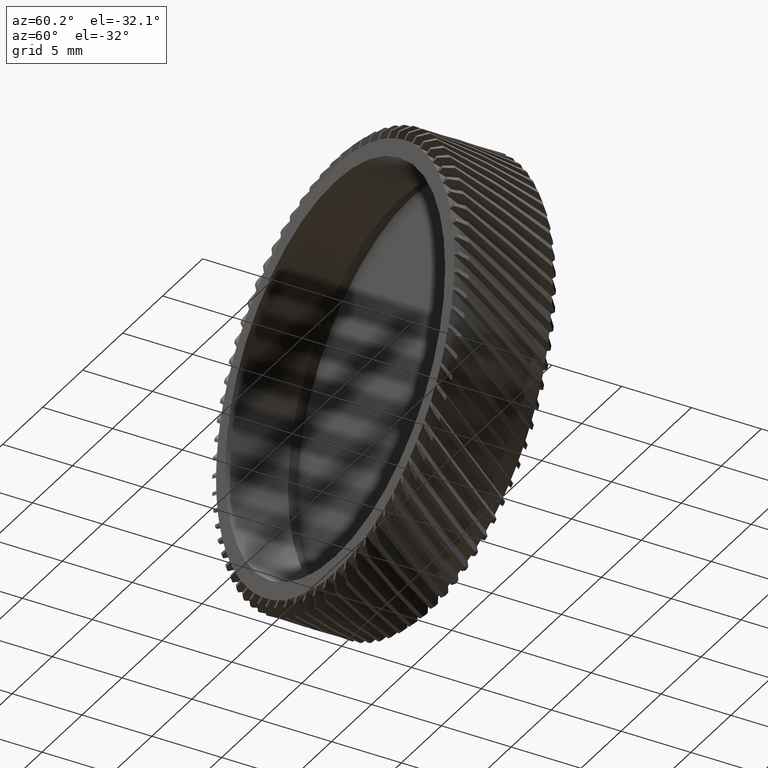
[diagram: clean part render]
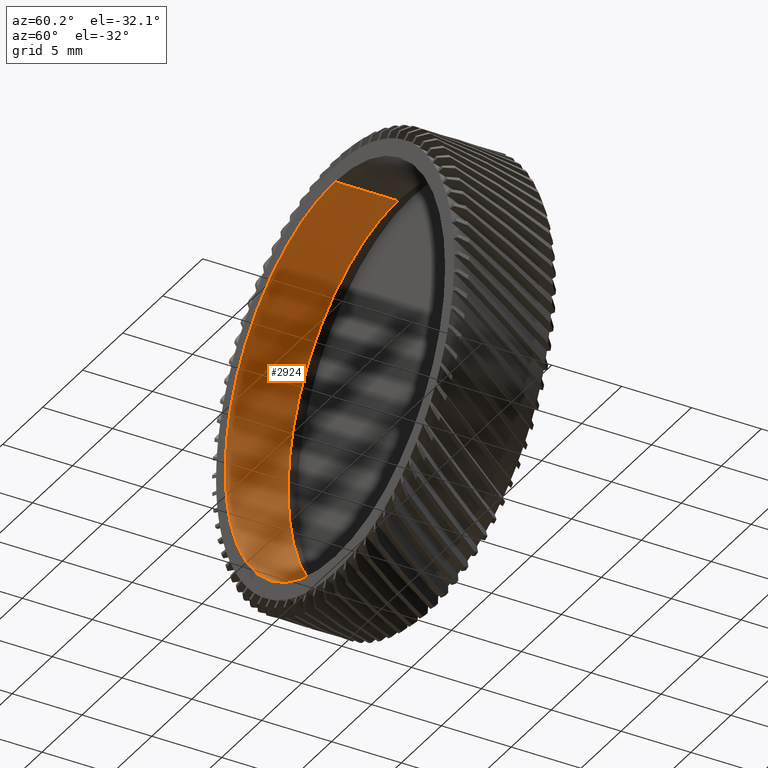
[diagram: same view with one face highlighted and labeled with its STEP entity id]
A machine part, auxiliary view. The second image highlights one B-rep face of the part: STEP entity #2924.
In plain terms, the highlighted cylindrical surface (partial cylindrical patch) has radius 13.75 mm, axis along (-0, 1, -0).
Its self-contained STEP definition (entity closure, byte-faithful):
#226 = CARTESIAN_POINT ( 'NONE',  ( 1.683889348827611600E-015, 46.02073106022621100, -13.75000000000000700 ) ) ;
#257 = CYLINDRICAL_SURFACE ( 'NONE', #8372, 13.75000000000000700 ) ;
#435 = EDGE_CURVE ( 'NONE', #8044, #15359, #7736, .T. ) ;
#676 = CIRCLE ( 'NONE', #15319, 13.75000000000000700 ) ;
#855 = VERTEX_POINT ( 'NONE', #1358 ) ;
#1300 = AXIS2_PLACEMENT_3D ( 'NONE', #3887, #5176, #13977 ) ;
#1358 = CARTESIAN_POINT ( 'NONE',  ( 1.683889348827611600E-015, -8.830884482231917700, -13.75000000000000700 ) ) ;
#2924 = ADVANCED_FACE ( 'NONE', ( #4585 ), #257, .F. ) ;
#3585 = DIRECTION ( 'NONE',  ( -0.0000000000000000000, 1.000000000000000000, -0.0000000000000000000 ) ) ;
#3634 = CARTESIAN_POINT ( 'NONE',  ( 0.0000000000000000000, 46.02073106022621100, 0.0000000000000000000 ) ) ;
#3887 = CARTESIAN_POINT ( 'NONE',  ( 0.0000000000000000000, -13.33088448223191600, 0.0000000000000000000 ) ) ;
#4025 = EDGE_LOOP ( 'NONE', ( #15846, #11997, #9535, #7045 ) ) ;
#4409 = CARTESIAN_POINT ( 'NONE',  ( 0.0000000000000000000, -13.33088448223191600, 13.75000000000000700 ) ) ;
#4474 = VERTEX_POINT ( 'NONE', #14837 ) ;
#4585 = FACE_OUTER_BOUND ( 'NONE', #4025, .T. ) ;
#5176 = DIRECTION ( 'NONE',  ( -0.0000000000000000000, 1.000000000000000000, -0.0000000000000000000 ) ) ;
#7045 = ORIENTED_EDGE ( 'NONE', *, *, #435, .F. ) ;
#7228 = CIRCLE ( 'NONE', #1300, 13.75000000000000700 ) ;
#7736 = LINE ( 'NONE', #10351, #9124 ) ;
#8044 = VERTEX_POINT ( 'NONE', #4409 ) ;
#8372 = AXIS2_PLACEMENT_3D ( 'NONE', #3634, #13702, #13585 ) ;
#8847 = LINE ( 'NONE', #226, #13523 ) ;
#9124 = VECTOR ( 'NONE', #11543, 1000.000000000000000 ) ;
#9535 = ORIENTED_EDGE ( 'NONE', *, *, #15545, .T. ) ;
#9818 = CARTESIAN_POINT ( 'NONE',  ( 0.0000000000000000000, -8.830884482231917700, 13.75000000000000700 ) ) ;
#10351 = CARTESIAN_POINT ( 'NONE',  ( 0.0000000000000000000, 46.02073106022621100, 13.75000000000000700 ) ) ;
#11543 = DIRECTION ( 'NONE',  ( -0.0000000000000000000, 1.000000000000000000, -0.0000000000000000000 ) ) ;
#11556 = DIRECTION ( 'NONE',  ( -0.0000000000000000000, 1.000000000000000000, -0.0000000000000000000 ) ) ;
#11997 = ORIENTED_EDGE ( 'NONE', *, *, #13119, .T. ) ;
#12387 = DIRECTION ( 'NONE',  ( 0.0000000000000000000, 0.0000000000000000000, 1.000000000000000000 ) ) ;
#13119 = EDGE_CURVE ( 'NONE', #4474, #855, #8847, .T. ) ;
#13523 = VECTOR ( 'NONE', #11556, 1000.000000000000000 ) ;
#13585 = DIRECTION ( 'NONE',  ( 0.0000000000000000000, 0.0000000000000000000, 1.000000000000000000 ) ) ;
#13648 = CARTESIAN_POINT ( 'NONE',  ( 0.0000000000000000000, -8.830884482231917700, 0.0000000000000000000 ) ) ;
#13702 = DIRECTION ( 'NONE',  ( -0.0000000000000000000, 1.000000000000000000, -0.0000000000000000000 ) ) ;
#13977 = DIRECTION ( 'NONE',  ( 0.0000000000000000000, 0.0000000000000000000, 1.000000000000000000 ) ) ;
#14157 = EDGE_CURVE ( 'NONE', #4474, #8044, #7228, .T. ) ;
#14837 = CARTESIAN_POINT ( 'NONE',  ( 1.683889348827611600E-015, -13.33088448223191600, -13.75000000000000700 ) ) ;
#15319 = AXIS2_PLACEMENT_3D ( 'NONE', #13648, #3585, #12387 ) ;
#15359 = VERTEX_POINT ( 'NONE', #9818 ) ;
#15545 = EDGE_CURVE ( 'NONE', #855, #15359, #676, .T. ) ;
#15846 = ORIENTED_EDGE ( 'NONE', *, *, #14157, .F. ) ;